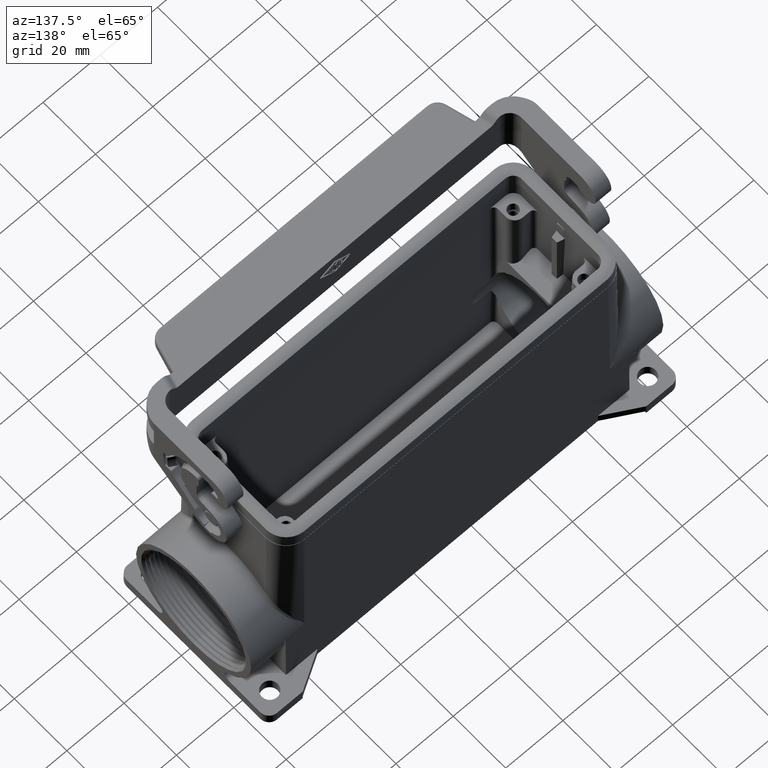
[diagram: clean part render]
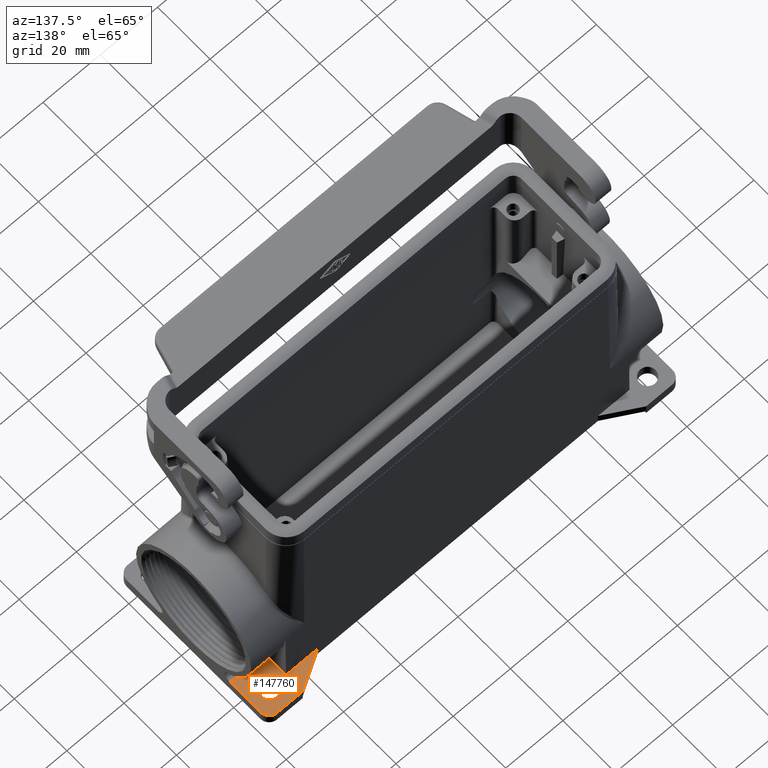
[diagram: same view with one face highlighted and labeled with its STEP entity id]
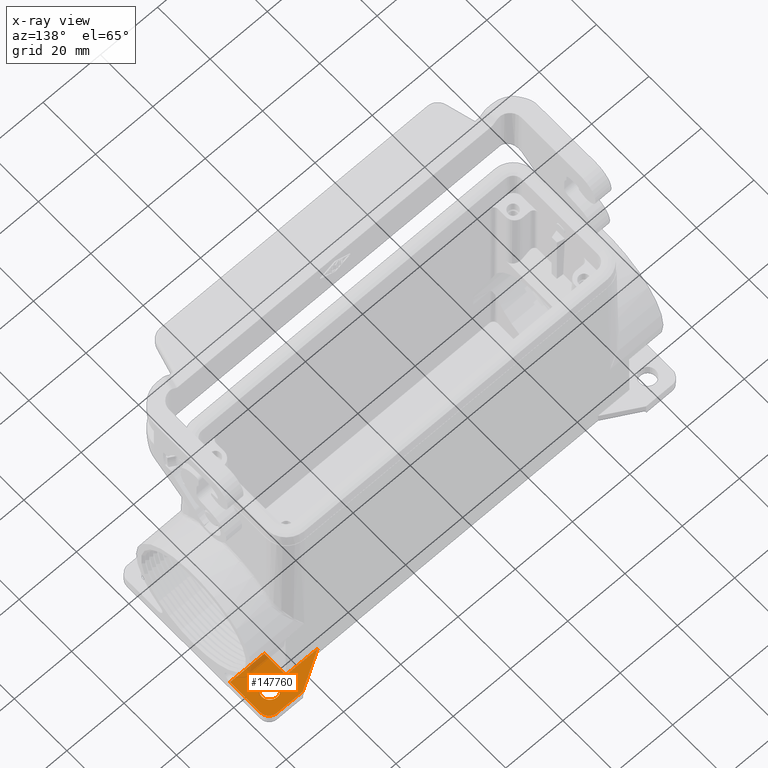
[diagram: x-ray of the same camera — body ghosted, the highlighted face saturated]
A machine part, auxiliary view. The second image highlights one B-rep face of the part: STEP entity #147760.
The next image is the same camera in x-ray: the body ghosted, the highlighted face saturated — about 5% of this face is hidden behind the body in this view.
In plain terms, the highlighted planar face has unit normal (0, 0, -1).
Its self-contained STEP definition (entity closure, byte-faithful):
#69520=CARTESIAN_POINT('',(-5.68142200000004,17.70508,2.99999999999998))
;
#69530=DIRECTION('',(0.,0.,-1.));
#69540=DIRECTION('',(0.,1.,0.));
#69550=AXIS2_PLACEMENT_3D('',#69520,#69530,#69540);
#69560=CIRCLE('',#69550,2.74999999999998);
#69570=CARTESIAN_POINT('',(-5.68142200000006,14.95508,2.99999999999998))
;
#69580=VERTEX_POINT('',#69570);
#69590=CARTESIAN_POINT('',(-8.43142200000002,17.70508,2.99999999999998))
;
#69600=VERTEX_POINT('',#69590);
#69610=EDGE_CURVE('',#69580,#69600,#69560,.T.);
#69840=CARTESIAN_POINT('',(-2.93142200000006,17.70508,2.99999999999998))
;
#69850=VERTEX_POINT('',#69840);
#69880=EDGE_CURVE('',#69850,#69580,#69560,.T.);
#115020=CARTESIAN_POINT('',(11.3621840970582,18.0811089529608,
2.99999999999998));
#115030=VERTEX_POINT('',#115020);
#115060=CARTESIAN_POINT('',(0.,18.0811089529608,2.99999999999998));
#115070=DIRECTION('',(1.,0.,0.));
#115080=VECTOR('',#115070,1.);
#115090=LINE('',#115060,#115080);
#115100=CARTESIAN_POINT('',(0.31857799999996,18.0811089529608,
2.99999999999998));
#115110=VERTEX_POINT('',#115100);
#115120=EDGE_CURVE('',#115110,#115030,#115090,.T.);
#120920=CARTESIAN_POINT('',(0.,11.5211489059422,2.99999999999998));
#120930=DIRECTION('',(0.866025403784439,0.5,0.));
#120940=VECTOR('',#120930,1.);
#120950=LINE('',#120920,#120940);
#120960=CARTESIAN_POINT('',(0.318577999999954,11.70508,2.99999999999998)
);
#120970=VERTEX_POINT('',#120960);
#120980=EDGE_CURVE('',#120970,#115030,#120950,.T.);
#129730=CARTESIAN_POINT('',(23.3685021747942,40.20508,2.99999999999998))
;
#129740=DIRECTION('',(0.,0.,-1.));
#129750=DIRECTION('',(1.,0.,0.));
#129760=AXIS2_PLACEMENT_3D('',#129730,#129740,#129750);
#129770=PLANE('',#129760);
#138520=CARTESIAN_POINT('',(-8.68142200000004,14.70508,2.99999999999998)
);
#138530=DIRECTION('',(0.,0.,1.));
#138540=DIRECTION('',(0.,-1.,0.));
#138550=AXIS2_PLACEMENT_3D('',#138520,#138530,#138540);
#138560=CIRCLE('',#138550,3.);
#138570=CARTESIAN_POINT('',(-11.681422,14.70508,2.99999999999998));
#138580=VERTEX_POINT('',#138570);
#138590=CARTESIAN_POINT('',(-8.68142200000004,11.70508,2.99999999999998)
);
#138600=VERTEX_POINT('',#138590);
#138610=EDGE_CURVE('',#138580,#138600,#138560,.T.);
#139060=CARTESIAN_POINT('',(-11.681422,0.,2.99999999999998));
#139070=DIRECTION('',(0.,-1.,0.));
#139080=VECTOR('',#139070,1.);
#139090=LINE('',#139060,#139080);
#139100=CARTESIAN_POINT('',(-11.681422,26.3249305411215,2.99999999999998
));
#139110=VERTEX_POINT('',#139100);
#139120=EDGE_CURVE('',#139110,#138580,#139090,.T.);
#146540=CARTESIAN_POINT('',(0.,11.70508,2.99999999999998));
#146550=DIRECTION('',(1.,0.,0.));
#146560=VECTOR('',#146550,1.);
#146570=LINE('',#146540,#146560);
#146580=EDGE_CURVE('',#138600,#120970,#146570,.T.);
#147490=EDGE_CURVE('',#69600,#69850,#69560,.T.);
#147500=ORIENTED_EDGE('',*,*,#147490,.T.);
#147510=ORIENTED_EDGE('',*,*,#69610,.T.);
#147520=ORIENTED_EDGE('',*,*,#69880,.T.);
#147530=EDGE_LOOP('',(#147520,#147510,#147500));
#147540=FACE_BOUND('',#147530,.T.);
#147550=CARTESIAN_POINT('',(0.31857799999996,0.,2.99999999999998));
#147560=DIRECTION('',(0.,1.,0.));
#147570=VECTOR('',#147560,1.);
#147580=LINE('',#147550,#147570);
#147590=CARTESIAN_POINT('',(0.31857799999996,26.3249305411215,
2.99999999999998));
#147600=VERTEX_POINT('',#147590);
#147610=EDGE_CURVE('',#115110,#147600,#147580,.T.);
#147620=ORIENTED_EDGE('',*,*,#147610,.T.);
#147630=ORIENTED_EDGE('',*,*,#115120,.F.);
#147640=ORIENTED_EDGE('',*,*,#120980,.T.);
#147650=ORIENTED_EDGE('',*,*,#146580,.T.);
#147660=ORIENTED_EDGE('',*,*,#138610,.T.);
#147670=ORIENTED_EDGE('',*,*,#139120,.T.);
#147680=CARTESIAN_POINT('',(-11.431422,26.3249305411215,2.99999999999998
));
#147690=DIRECTION('',(-1.,0.,0.));
#147700=VECTOR('',#147690,1.);
#147710=LINE('',#147680,#147700);
#147720=EDGE_CURVE('',#147600,#139110,#147710,.T.);
#147730=ORIENTED_EDGE('',*,*,#147720,.T.);
#147740=EDGE_LOOP('',(#147730,#147670,#147660,#147650,#147640,#147630,
#147620));
#147750=FACE_OUTER_BOUND('',#147740,.T.);
#147760=ADVANCED_FACE('',(#147540,#147750),#129770,.F.);